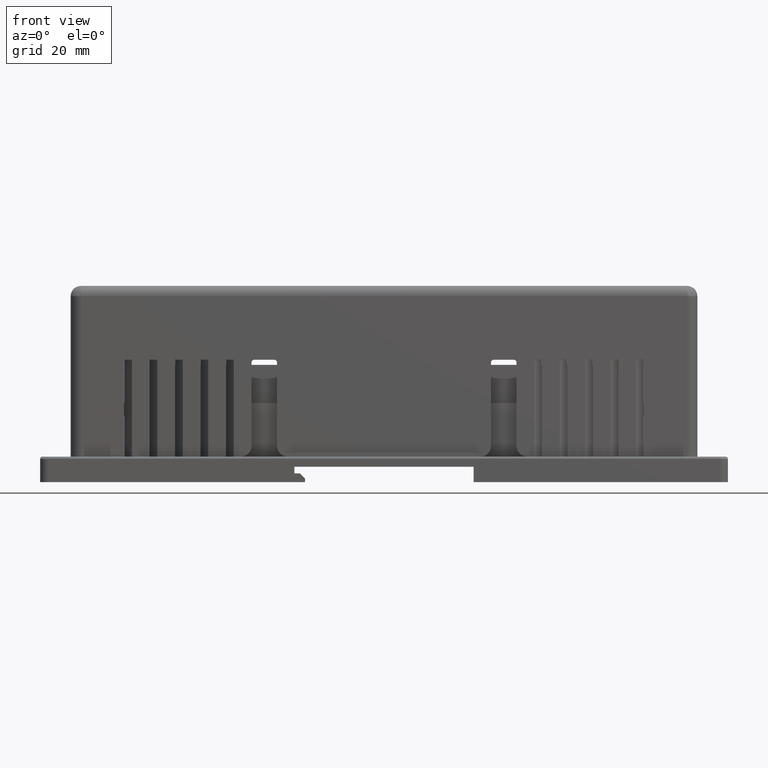
[diagram: clean part render]
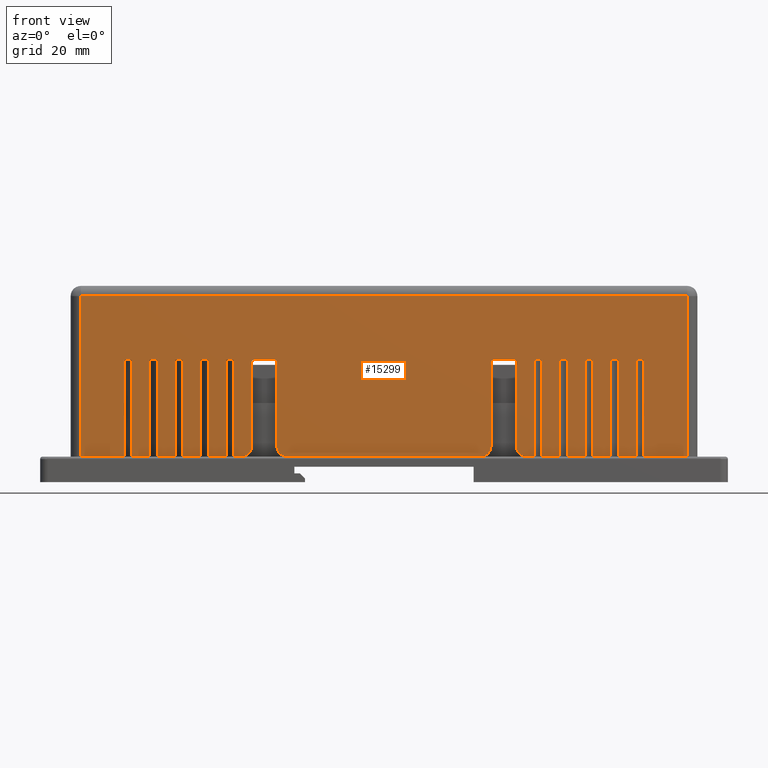
[diagram: same view with one face highlighted and labeled with its STEP entity id]
A machine part, front view. The second image highlights one B-rep face of the part: STEP entity #15299.
In plain terms, the highlighted planar face has unit normal (0, -1, 0).
Its self-contained STEP definition (entity closure, byte-faithful):
#7 = VECTOR ( 'NONE', #1507, 39.37007874015748143 ) ;
#9 = VECTOR ( 'NONE', #16006, 39.37007874015748143 ) ;
#52 = VERTEX_POINT ( 'NONE', #8788 ) ;
#218 = DIRECTION ( 'NONE',  ( -0.000000000000000000, 0.000000000000000000, 1.000000000000000000 ) ) ;
#222 = CARTESIAN_POINT ( 'NONE',  ( 1.771653543307086576, -0.1377952755905511861, -0.3937007874015748254 ) ) ;
#268 = CARTESIAN_POINT ( 'NONE',  ( 0.7677165354330708347, -0.1377952755905511861, 0.3346456692913385988 ) ) ;
#280 = EDGE_CURVE ( 'NONE', #9108, #12969, #10789, .T. ) ;
#317 = CARTESIAN_POINT ( 'NONE',  ( 1.771653543307086576, -0.1377952755905511861, -0.3937007874015748254 ) ) ;
#336 = CARTESIAN_POINT ( 'NONE',  ( -0.2559055118110236671, -0.1377952755905511861, 0.3543307086614173596 ) ) ;
#349 = VECTOR ( 'NONE', #8469, 39.37007874015748143 ) ;
#376 = AXIS2_PLACEMENT_3D ( 'NONE', #9780, #627, #16168 ) ;
#398 = DIRECTION ( 'NONE',  ( 1.000000000000000000, 0.000000000000000000, -0.000000000000000000 ) ) ;
#414 = LINE ( 'NONE', #1582, #12152 ) ;
#449 = CARTESIAN_POINT ( 'NONE',  ( 0.3539370078740162184, -0.1377952755905511861, -0.3937007874015748254 ) ) ;
#489 = VERTEX_POINT ( 'NONE', #1282 ) ;
#506 = CARTESIAN_POINT ( 'NONE',  ( 4.114173228346456490, -0.1377952755905511861, -0.3937007874015748254 ) ) ;
#540 = VERTEX_POINT ( 'NONE', #506 ) ;
#562 = ORIENTED_EDGE ( 'NONE', *, *, #9488, .T. ) ;
#627 = DIRECTION ( 'NONE',  ( -0.000000000000000000, 1.000000000000000000, -0.000000000000000000 ) ) ;
#631 = CARTESIAN_POINT ( 'NONE',  ( -0.03976377952755904416, -0.1377952755905512139, 0.3543307086614173596 ) ) ;
#801 = LINE ( 'NONE', #5932, #9454 ) ;
#866 = CARTESIAN_POINT ( 'NONE',  ( -0.1767716535433071223, -0.1377952755905511584, 0.3543307086614173596 ) ) ;
#870 = VECTOR ( 'NONE', #7712, 39.37007874015748143 ) ;
#882 = ORIENTED_EDGE ( 'NONE', *, *, #1817, .T. ) ;
#926 = CARTESIAN_POINT ( 'NONE',  ( 2.972440944881889813, -0.1377952755905511861, 0.3543307086614173596 ) ) ;
#996 = EDGE_CURVE ( 'NONE', #4552, #1030, #10722, .T. ) ;
#999 = VERTEX_POINT ( 'NONE', #1663 ) ;
#1013 = EDGE_CURVE ( 'NONE', #13964, #6480, #13153, .T. ) ;
#1025 = DIRECTION ( 'NONE',  ( 1.000000000000000000, 0.000000000000000000, 0.000000000000000000 ) ) ;
#1028 = ORIENTED_EDGE ( 'NONE', *, *, #3982, .T. ) ;
#1030 = VERTEX_POINT ( 'NONE', #6790 ) ;
#1064 = VERTEX_POINT ( 'NONE', #6620 ) ;
#1079 = CARTESIAN_POINT ( 'NONE',  ( 0.5507874015748032148, -0.1377952755905511861, -0.3937007874015748254 ) ) ;
#1239 = VERTEX_POINT ( 'NONE', #3579 ) ;
#1253 = CARTESIAN_POINT ( 'NONE',  ( 1.771653543307086576, -0.1377952755905511861, -0.3937007874015748254 ) ) ;
#1282 = CARTESIAN_POINT ( 'NONE',  ( -0.5708661417322834497, -0.1377952755905511861, -0.3937007874015748254 ) ) ;
#1296 = EDGE_CURVE ( 'NONE', #15370, #4552, #16512, .T. ) ;
#1396 = EDGE_CURVE ( 'NONE', #1030, #10910, #11976, .T. ) ;
#1496 = CARTESIAN_POINT ( 'NONE',  ( 2.795275590551181466, -0.1377952755905511861, 0.3346456692913382103 ) ) ;
#1507 = DIRECTION ( 'NONE',  ( 1.000000000000000000, 0.000000000000000000, 0.000000000000000000 ) ) ;
#1558 = ORIENTED_EDGE ( 'NONE', *, *, #6232, .T. ) ;
#1582 = CARTESIAN_POINT ( 'NONE',  ( 1.771653543307086576, -0.1377952755905511861, 0.3543307086614174151 ) ) ;
#1662 = VECTOR ( 'NONE', #15083, 39.37007874015748143 ) ;
#1663 = CARTESIAN_POINT ( 'NONE',  ( 0.6106299212598425008, -0.1377952755905511584, 0.3543307086614173596 ) ) ;
#1676 = CARTESIAN_POINT ( 'NONE',  ( 0.6692913385826771977, -0.1377952755905511584, -0.3937007874015748254 ) ) ;
#1692 = EDGE_CURVE ( 'NONE', #2857, #10312, #12879, .T. ) ;
#1710 = DIRECTION ( 'NONE',  ( 0.000000000000000000, 0.000000000000000000, -1.000000000000000000 ) ) ;
#1730 = ORIENTED_EDGE ( 'NONE', *, *, #4586, .T. ) ;
#1735 = DIRECTION ( 'NONE',  ( 0.000000000000000000, -0.000000000000000000, -1.000000000000000000 ) ) ;
#1746 = VECTOR ( 'NONE', #13770, 39.37007874015748143 ) ;
#1780 = EDGE_CURVE ( 'NONE', #7309, #8877, #6586, .T. ) ;
#1798 = CARTESIAN_POINT ( 'NONE',  ( 2.598425196850393970, -0.1377952755905511861, -0.3149606299212598381 ) ) ;
#1817 = EDGE_CURVE ( 'NONE', #15528, #12512, #9317, .T. ) ;
#1827 = DIRECTION ( 'NONE',  ( 1.000000000000000000, 0.000000000000000000, 9.691192603222390418E-18 ) ) ;
#1855 = VERTEX_POINT ( 'NONE', #10444 ) ;
#1874 = DIRECTION ( 'NONE',  ( -1.000000000000000000, -0.000000000000000000, -0.000000000000000000 ) ) ;
#1883 = PLANE ( 'NONE',  #13950 ) ;
#2083 = ORIENTED_EDGE ( 'NONE', *, *, #14438, .T. ) ;
#2092 = CARTESIAN_POINT ( 'NONE',  ( 1.023622047244094668, -0.1377952755905511584, -0.3937007874015748254 ) ) ;
#2097 = EDGE_CURVE ( 'NONE', #2661, #1239, #8675, .T. ) ;
#2291 = LINE ( 'NONE', #6157, #7027 ) ;
#2361 = ORIENTED_EDGE ( 'NONE', *, *, #2826, .T. ) ;
#2365 = DIRECTION ( 'NONE',  ( 0.000000000000000000, -0.000000000000000000, -1.000000000000000000 ) ) ;
#2444 = CARTESIAN_POINT ( 'NONE',  ( -0.03976377952755894007, -0.1377952755905511861, -0.3937007874015748254 ) ) ;
#2450 = CARTESIAN_POINT ( 'NONE',  ( -0.5708661417322834497, -0.1377952755905511861, -0.3937007874015748254 ) ) ;
#2462 = VECTOR ( 'NONE', #9922, 39.37007874015748143 ) ;
#2501 = CIRCLE ( 'NONE', #376, 0.01968503937007875723 ) ;
#2503 = CARTESIAN_POINT ( 'NONE',  ( 2.972440944881889813, -0.1377952755905511861, 0.3543307086614173596 ) ) ;
#2512 = VECTOR ( 'NONE', #7592, 39.37007874015748143 ) ;
#2513 = ORIENTED_EDGE ( 'NONE', *, *, #10136, .T. ) ;
#2527 = DIRECTION ( 'NONE',  ( -0.000000000000000000, 0.000000000000000000, 1.000000000000000000 ) ) ;
#2540 = EDGE_LOOP ( 'NONE', ( #14935, #4511, #2361, #3296, #16318, #1730, #13792, #11106, #4800, #2717, #14755, #10443, #6383, #16535, #8530, #5771, #9822, #11409, #3586, #10864, #12411, #12819, #8148, #7478, #6593, #1028, #9042, #15310, #4113, #6407, #5220, #15961, #2083, #562, #8627, #1558, #12165, #2513, #10404, #3316, #8441, #14390, #14912, #10582, #16183, #3297, #13125, #9149, #8904, #6479, #7464, #9438, #4200, #14515, #8187, #882, #14923, #10607, #10685, #9868 ) ) ;
#2592 = CARTESIAN_POINT ( 'NONE',  ( 2.992519685039370270, -0.1377952755905511861, 0.3543307086614173596 ) ) ;
#2610 = CARTESIAN_POINT ( 'NONE',  ( 3.523228346456693139, -0.1377952755905511861, -0.3937007874015748254 ) ) ;
#2637 = CARTESIAN_POINT ( 'NONE',  ( -0.2559055118110236671, -0.1377952755905511861, 0.3543307086614173596 ) ) ;
#2658 = VERTEX_POINT ( 'NONE', #631 ) ;
#2661 = VERTEX_POINT ( 'NONE', #12473 ) ;
#2705 = VECTOR ( 'NONE', #16132, 39.37007874015748143 ) ;
#2717 = ORIENTED_EDGE ( 'NONE', *, *, #4909, .T. ) ;
#2754 = VERTEX_POINT ( 'NONE', #3813 ) ;
#2790 = VECTOR ( 'NONE', #15142, 39.37007874015748143 ) ;
#2826 = EDGE_CURVE ( 'NONE', #6307, #10511, #2291, .T. ) ;
#2835 = CARTESIAN_POINT ( 'NONE',  ( 0.6692913385826771977, -0.1377952755905511861, -0.3149606299212598381 ) ) ;
#2857 = VERTEX_POINT ( 'NONE', #16576 ) ;
#2922 = CARTESIAN_POINT ( 'NONE',  ( 0.7480314960629921295, -0.1377952755905511861, -0.3149606299212598381 ) ) ;
#2931 = EDGE_CURVE ( 'NONE', #6480, #1064, #13784, .T. ) ;
#2954 = CARTESIAN_POINT ( 'NONE',  ( 0.9448818897637796255, -0.1377952755905511861, -0.3937007874015748254 ) ) ;
#2997 = LINE ( 'NONE', #5268, #10905 ) ;
#3014 = VECTOR ( 'NONE', #12463, 39.37007874015748143 ) ;
#3091 = DIRECTION ( 'NONE',  ( 0.000000000000000000, -1.000000000000000000, 0.000000000000000000 ) ) ;
#3111 = EDGE_CURVE ( 'NONE', #13335, #13522, #14982, .T. ) ;
#3287 = VECTOR ( 'NONE', #9512, 39.37007874015748143 ) ;
#3296 = ORIENTED_EDGE ( 'NONE', *, *, #9473, .T. ) ;
#3297 = ORIENTED_EDGE ( 'NONE', *, *, #12494, .T. ) ;
#3316 = ORIENTED_EDGE ( 'NONE', *, *, #996, .T. ) ;
#3336 = EDGE_CURVE ( 'NONE', #5058, #540, #6981, .T. ) ;
#3355 = VERTEX_POINT ( 'NONE', #6740 ) ;
#3405 = DIRECTION ( 'NONE',  ( -0.000000000000000000, 0.000000000000000000, 1.000000000000000000 ) ) ;
#3448 = EDGE_CURVE ( 'NONE', #12488, #4347, #8501, .T. ) ;
#3579 = CARTESIAN_POINT ( 'NONE',  ( 3.583070866141732758, -0.1377952755905511861, -0.3937007874015748810 ) ) ;
#3586 = ORIENTED_EDGE ( 'NONE', *, *, #12535, .T. ) ;
#3663 = CARTESIAN_POINT ( 'NONE',  ( 3.189370078740158210, -0.1377952755905511861, -0.3937007874015748254 ) ) ;
#3667 = CIRCLE ( 'NONE', #7165, 0.01968503937007875723 ) ;
#3771 = VECTOR ( 'NONE', #6784, 39.37007874015748143 ) ;
#3813 = CARTESIAN_POINT ( 'NONE',  ( 0.3539370078740161629, -0.1377952755905512416, 0.3543307086614173596 ) ) ;
#3837 = LINE ( 'NONE', #8720, #12247 ) ;
#3981 = CARTESIAN_POINT ( 'NONE',  ( 3.720078740157480190, -0.1377952755905511861, -0.3937007874015748254 ) ) ;
#3982 = EDGE_CURVE ( 'NONE', #540, #9108, #7944, .T. ) ;
#4040 = VERTEX_POINT ( 'NONE', #14657 ) ;
#4085 = CARTESIAN_POINT ( 'NONE',  ( 4.114173228346456490, -0.1377952755905511861, -0.3937007874015748254 ) ) ;
#4113 = ORIENTED_EDGE ( 'NONE', *, *, #13817, .T. ) ;
#4117 = VERTEX_POINT ( 'NONE', #1798 ) ;
#4175 = EDGE_CURVE ( 'NONE', #12969, #489, #6074, .T. ) ;
#4186 = CARTESIAN_POINT ( 'NONE',  ( 0.2169291338582677586, -0.1377952755905511861, -0.3937007874015748254 ) ) ;
#4195 = VERTEX_POINT ( 'NONE', #7338 ) ;
#4200 = ORIENTED_EDGE ( 'NONE', *, *, #6755, .T. ) ;
#4247 = VECTOR ( 'NONE', #11194, 39.37007874015748143 ) ;
#4256 = VERTEX_POINT ( 'NONE', #9857 ) ;
#4269 = EDGE_CURVE ( 'NONE', #11845, #10123, #16406, .T. ) ;
#4298 = DIRECTION ( 'NONE',  ( 0.000000000000000000, 0.000000000000000000, -1.000000000000000000 ) ) ;
#4347 = VERTEX_POINT ( 'NONE', #5484 ) ;
#4414 = LINE ( 'NONE', #8446, #7071 ) ;
#4424 = DIRECTION ( 'NONE',  ( -1.000000000000000000, 0.000000000000000000, -0.000000000000000000 ) ) ;
#4469 = VERTEX_POINT ( 'NONE', #10766 ) ;
#4483 = CARTESIAN_POINT ( 'NONE',  ( 2.874015748031495843, -0.1377952755905511584, -0.3149606299212598381 ) ) ;
#4511 = ORIENTED_EDGE ( 'NONE', *, *, #9804, .T. ) ;
#4552 = VERTEX_POINT ( 'NONE', #12447 ) ;
#4564 = AXIS2_PLACEMENT_3D ( 'NONE', #2835, #3091, #13334 ) ;
#4586 = EDGE_CURVE ( 'NONE', #13387, #8107, #10079, .T. ) ;
#4600 = VECTOR ( 'NONE', #4676, 39.37007874015748143 ) ;
#4668 = FACE_OUTER_BOUND ( 'NONE', #2540, .T. ) ;
#4676 = DIRECTION ( 'NONE',  ( -0.000000000000000000, 0.000000000000000000, 1.000000000000000000 ) ) ;
#4738 = CARTESIAN_POINT ( 'NONE',  ( 0.6106299212598425008, -0.1377952755905511861, -0.3937007874015748254 ) ) ;
#4800 = ORIENTED_EDGE ( 'NONE', *, *, #5314, .T. ) ;
#4909 = EDGE_CURVE ( 'NONE', #4040, #6538, #15184, .T. ) ;
#4927 = DIRECTION ( 'NONE',  ( 0.000000000000000000, -0.000000000000000000, -1.000000000000000000 ) ) ;
#4939 = DIRECTION ( 'NONE',  ( -0.000000000000000000, 0.000000000000000000, 1.000000000000000000 ) ) ;
#4999 = VERTEX_POINT ( 'NONE', #12582 ) ;
#5051 = DIRECTION ( 'NONE',  ( 0.000000000000000000, 0.000000000000000000, -1.000000000000000000 ) ) ;
#5058 = VERTEX_POINT ( 'NONE', #5280 ) ;
#5084 = LINE ( 'NONE', #6350, #7619 ) ;
#5159 = CARTESIAN_POINT ( 'NONE',  ( 2.992519685039370270, -0.1377952755905511861, -0.3937007874015748254 ) ) ;
#5169 = VECTOR ( 'NONE', #15411, 39.37007874015748143 ) ;
#5179 = DIRECTION ( 'NONE',  ( 1.000000000000000000, 0.000000000000000000, 9.691192603222390418E-18 ) ) ;
#5220 = ORIENTED_EDGE ( 'NONE', *, *, #16488, .T. ) ;
#5268 = CARTESIAN_POINT ( 'NONE',  ( 1.771653543307086576, -0.1377952755905511861, -0.3937007874015748254 ) ) ;
#5270 = CARTESIAN_POINT ( 'NONE',  ( 3.720078740157480190, -0.1377952755905511584, 0.3543307086614173596 ) ) ;
#5277 = EDGE_CURVE ( 'NONE', #15658, #7986, #2501, .T. ) ;
#5280 = CARTESIAN_POINT ( 'NONE',  ( 3.779921259842519810, -0.1377952755905511584, -0.3937007874015748254 ) ) ;
#5314 = EDGE_CURVE ( 'NONE', #4256, #4040, #4414, .T. ) ;
#5425 = EDGE_CURVE ( 'NONE', #999, #14865, #13966, .T. ) ;
#5443 = CARTESIAN_POINT ( 'NONE',  ( 0.02007874015748049509, -0.1377952755905511584, -0.3937007874015748254 ) ) ;
#5484 = CARTESIAN_POINT ( 'NONE',  ( 3.523228346456693139, -0.1377952755905511584, -0.3937007874015748810 ) ) ;
#5532 = DIRECTION ( 'NONE',  ( 1.000000000000000000, 0.000000000000000000, 0.000000000000000000 ) ) ;
#5560 = DIRECTION ( 'NONE',  ( 0.000000000000000000, -0.000000000000000000, -1.000000000000000000 ) ) ;
#5572 = DIRECTION ( 'NONE',  ( -0.000000000000000000, 0.000000000000000000, 1.000000000000000000 ) ) ;
#5601 = DIRECTION ( 'NONE',  ( 1.000000000000000000, 0.000000000000000000, 0.000000000000000000 ) ) ;
#5680 = LINE ( 'NONE', #15604, #3771 ) ;
#5740 = CARTESIAN_POINT ( 'NONE',  ( 2.618110236220472675, -0.1377952755905511861, 0.3543307086614173596 ) ) ;
#5771 = ORIENTED_EDGE ( 'NONE', *, *, #12549, .T. ) ;
#5817 = CARTESIAN_POINT ( 'NONE',  ( 2.598425196850393970, -0.1377952755905511861, 0.3346456692913382103 ) ) ;
#5880 = LINE ( 'NONE', #13852, #13713 ) ;
#5932 = CARTESIAN_POINT ( 'NONE',  ( -0.2366141732283465193, -0.1377952755905511861, -0.3937007874015748254 ) ) ;
#5987 = VERTEX_POINT ( 'NONE', #11853 ) ;
#5992 = CARTESIAN_POINT ( 'NONE',  ( 1.771653543307086576, -0.1377952755905511861, -0.3937007874015748254 ) ) ;
#6005 = VECTOR ( 'NONE', #2365, 39.37007874015748143 ) ;
#6074 = LINE ( 'NONE', #2450, #2512 ) ;
#6157 = CARTESIAN_POINT ( 'NONE',  ( 2.795275590551181466, -0.1377952755905511861, -0.3937007874015748254 ) ) ;
#6167 = CARTESIAN_POINT ( 'NONE',  ( 3.326377952755905643, -0.1377952755905511861, -0.3937007874015748254 ) ) ;
#6180 = DIRECTION ( 'NONE',  ( 0.000000000000000000, -0.000000000000000000, -1.000000000000000000 ) ) ;
#6189 = CARTESIAN_POINT ( 'NONE',  ( 1.771653543307086576, -0.1377952755905511861, -0.3937007874015748254 ) ) ;
#6199 = CARTESIAN_POINT ( 'NONE',  ( 0.02007874015748045346, -0.1377952755905511861, -0.3937007874015748254 ) ) ;
#6210 = DIRECTION ( 'NONE',  ( 1.000000000000000000, 0.000000000000000000, -0.000000000000000000 ) ) ;
#6232 = EDGE_CURVE ( 'NONE', #4999, #14350, #11240, .T. ) ;
#6272 = LINE ( 'NONE', #3663, #12784 ) ;
#6307 = VERTEX_POINT ( 'NONE', #1496 ) ;
#6309 = CARTESIAN_POINT ( 'NONE',  ( 3.583070866141732758, -0.1377952755905511861, -0.3937007874015748254 ) ) ;
#6315 = LINE ( 'NONE', #5992, #8049 ) ;
#6350 = CARTESIAN_POINT ( 'NONE',  ( 1.771653543307086576, -0.1377952755905511861, 0.3543307086614174151 ) ) ;
#6383 = ORIENTED_EDGE ( 'NONE', *, *, #13382, .T. ) ;
#6407 = ORIENTED_EDGE ( 'NONE', *, *, #10261, .T. ) ;
#6430 = CARTESIAN_POINT ( 'NONE',  ( -0.2559055118110236671, -0.1377952755905511861, 0.3543307086614173596 ) ) ;
#6479 = ORIENTED_EDGE ( 'NONE', *, *, #1013, .T. ) ;
#6480 = VERTEX_POINT ( 'NONE', #2922 ) ;
#6485 = AXIS2_PLACEMENT_3D ( 'NONE', #7125, #8726, #4298 ) ;
#6518 = LINE ( 'NONE', #6167, #1662 ) ;
#6538 = VERTEX_POINT ( 'NONE', #16266 ) ;
#6586 = LINE ( 'NONE', #3981, #12782 ) ;
#6593 = ORIENTED_EDGE ( 'NONE', *, *, #3336, .T. ) ;
#6620 = CARTESIAN_POINT ( 'NONE',  ( 0.7480314960629921295, -0.1377952755905511861, 0.3346456692913385988 ) ) ;
#6674 = AXIS2_PLACEMENT_3D ( 'NONE', #4483, #14732, #13470 ) ;
#6740 = CARTESIAN_POINT ( 'NONE',  ( 2.519685039370078705, -0.1377952755905511861, -0.3937007874015748254 ) ) ;
#6746 = CIRCLE ( 'NONE', #6485, 0.01968503937007875723 ) ;
#6755 = EDGE_CURVE ( 'NONE', #7336, #15658, #5084, .T. ) ;
#6784 = DIRECTION ( 'NONE',  ( 1.000000000000000000, 0.000000000000000000, 0.000000000000000000 ) ) ;
#6790 = CARTESIAN_POINT ( 'NONE',  ( 0.2169291338582677586, -0.1377952755905511861, -0.3937007874015748254 ) ) ;
#6834 = VECTOR ( 'NONE', #4939, 39.37007874015748143 ) ;
#6841 = VERTEX_POINT ( 'NONE', #11859 ) ;
#6859 = DIRECTION ( 'NONE',  ( 1.000000000000000000, 0.000000000000000000, 0.000000000000000000 ) ) ;
#6906 = VERTEX_POINT ( 'NONE', #7918 ) ;
#6980 = LINE ( 'NONE', #2954, #11032 ) ;
#6981 = LINE ( 'NONE', #15807, #3287 ) ;
#7027 = VECTOR ( 'NONE', #12803, 39.37007874015748143 ) ;
#7071 = VECTOR ( 'NONE', #14908, 39.37007874015748143 ) ;
#7102 = CARTESIAN_POINT ( 'NONE',  ( 1.771653543307086576, -0.1377952755905511584, -0.3937007874015748254 ) ) ;
#7125 = CARTESIAN_POINT ( 'NONE',  ( 2.775590551181102761, -0.1377952755905511861, 0.3346456692913382103 ) ) ;
#7142 = EDGE_CURVE ( 'NONE', #8107, #13854, #12677, .T. ) ;
#7149 = CARTESIAN_POINT ( 'NONE',  ( 0.1570866141732284449, -0.1377952755905512139, -0.3937007874015748254 ) ) ;
#7165 = AXIS2_PLACEMENT_3D ( 'NONE', #12352, #14959, #8663 ) ;
#7219 = DIRECTION ( 'NONE',  ( 1.000000000000000000, 0.000000000000000000, 0.000000000000000000 ) ) ;
#7309 = VERTEX_POINT ( 'NONE', #7977 ) ;
#7313 = VECTOR ( 'NONE', #5572, 39.37007874015748143 ) ;
#7336 = VERTEX_POINT ( 'NONE', #14440 ) ;
#7338 = CARTESIAN_POINT ( 'NONE',  ( 2.775590551181102761, -0.1377952755905511861, 0.3543307086614173596 ) ) ;
#7360 = CARTESIAN_POINT ( 'NONE',  ( 3.386220472440945262, -0.1377952755905511861, 0.3543307086614173596 ) ) ;
#7385 = CARTESIAN_POINT ( 'NONE',  ( 3.129527559055117703, -0.1377952755905511861, -0.3937007874015748254 ) ) ;
#7409 = CARTESIAN_POINT ( 'NONE',  ( 2.932677165354330651, -0.1377952755905511584, -0.3937007874015748254 ) ) ;
#7430 = EDGE_CURVE ( 'NONE', #2658, #4999, #15945, .T. ) ;
#7435 = CIRCLE ( 'NONE', #7707, 0.07874015748031495954 ) ;
#7464 = ORIENTED_EDGE ( 'NONE', *, *, #2931, .T. ) ;
#7468 = EDGE_CURVE ( 'NONE', #8717, #5058, #3837, .T. ) ;
#7469 = EDGE_CURVE ( 'NONE', #13353, #1855, #6272, .T. ) ;
#7478 = ORIENTED_EDGE ( 'NONE', *, *, #7468, .T. ) ;
#7531 = CARTESIAN_POINT ( 'NONE',  ( 3.326377952755905643, -0.1377952755905511584, -0.3937007874015748810 ) ) ;
#7562 = DIRECTION ( 'NONE',  ( 0.000000000000000000, 0.000000000000000000, -1.000000000000000000 ) ) ;
#7592 = DIRECTION ( 'NONE',  ( 0.000000000000000000, -0.000000000000000000, -1.000000000000000000 ) ) ;
#7619 = VECTOR ( 'NONE', #15340, 39.37007874015748143 ) ;
#7627 = EDGE_CURVE ( 'NONE', #8877, #8717, #15600, .T. ) ;
#7707 = AXIS2_PLACEMENT_3D ( 'NONE', #16463, #15458, #7562 ) ;
#7712 = DIRECTION ( 'NONE',  ( 1.000000000000000000, 0.000000000000000000, 0.000000000000000000 ) ) ;
#7740 = EDGE_CURVE ( 'NONE', #1239, #7309, #2997, .T. ) ;
#7790 = CARTESIAN_POINT ( 'NONE',  ( 3.779921259842519810, -0.1377952755905511861, 0.3543307086614173596 ) ) ;
#7817 = VECTOR ( 'NONE', #12516, 39.37007874015748143 ) ;
#7918 = CARTESIAN_POINT ( 'NONE',  ( 2.874015748031495843, -0.1377952755905511584, -0.3937007874015748254 ) ) ;
#7944 = LINE ( 'NONE', #4085, #14798 ) ;
#7959 = VECTOR ( 'NONE', #15150, 39.37007874015748143 ) ;
#7977 = CARTESIAN_POINT ( 'NONE',  ( 3.720078740157480190, -0.1377952755905511584, -0.3937007874015748810 ) ) ;
#7986 = VERTEX_POINT ( 'NONE', #10350 ) ;
#8000 = VECTOR ( 'NONE', #14585, 39.37007874015748143 ) ;
#8006 = EDGE_CURVE ( 'NONE', #4347, #15491, #13735, .T. ) ;
#8037 = CARTESIAN_POINT ( 'NONE',  ( 2.972440944881889813, -0.1377952755905511861, 0.3543307086614173596 ) ) ;
#8049 = VECTOR ( 'NONE', #1025, 39.37007874015748143 ) ;
#8088 = VECTOR ( 'NONE', #4424, 39.37007874015748143 ) ;
#8107 = VERTEX_POINT ( 'NONE', #8328 ) ;
#8131 = DIRECTION ( 'NONE',  ( 1.000000000000000000, 0.000000000000000000, 0.000000000000000000 ) ) ;
#8148 = ORIENTED_EDGE ( 'NONE', *, *, #7627, .T. ) ;
#8187 = ORIENTED_EDGE ( 'NONE', *, *, #13618, .T. ) ;
#8258 = EDGE_CURVE ( 'NONE', #10874, #14533, #3667, .T. ) ;
#8304 = LINE ( 'NONE', #10728, #349 ) ;
#8328 = CARTESIAN_POINT ( 'NONE',  ( 2.932677165354330651, -0.1377952755905511861, 0.3543307086614173596 ) ) ;
#8330 = EDGE_CURVE ( 'NONE', #3355, #4117, #7435, .T. ) ;
#8359 = CARTESIAN_POINT ( 'NONE',  ( 1.771653543307086576, -0.1377952755905511861, 0.8464566929133857665 ) ) ;
#8441 = ORIENTED_EDGE ( 'NONE', *, *, #1396, .T. ) ;
#8446 = CARTESIAN_POINT ( 'NONE',  ( 1.771653543307086576, -0.1377952755905511861, -0.3937007874015748254 ) ) ;
#8452 = LINE ( 'NONE', #9466, #13152 ) ;
#8469 = DIRECTION ( 'NONE',  ( 1.000000000000000000, 0.000000000000000000, -0.000000000000000000 ) ) ;
#8501 = LINE ( 'NONE', #6189, #870 ) ;
#8516 = CARTESIAN_POINT ( 'NONE',  ( 3.189370078740158210, -0.1377952755905511861, 0.3543307086614173596 ) ) ;
#8530 = ORIENTED_EDGE ( 'NONE', *, *, #4269, .T. ) ;
#8627 = ORIENTED_EDGE ( 'NONE', *, *, #7430, .T. ) ;
#8663 = DIRECTION ( 'NONE',  ( 0.000000000000000000, 0.000000000000000000, -1.000000000000000000 ) ) ;
#8675 = LINE ( 'NONE', #6309, #10904 ) ;
#8705 = CARTESIAN_POINT ( 'NONE',  ( 0.4137795275590550603, -0.1377952755905511861, -0.3937007874015748254 ) ) ;
#8717 = VERTEX_POINT ( 'NONE', #7790 ) ;
#8720 = CARTESIAN_POINT ( 'NONE',  ( 3.779921259842520254, -0.1377952755905511861, -0.3937007874015748254 ) ) ;
#8726 = DIRECTION ( 'NONE',  ( -0.000000000000000000, 1.000000000000000000, -0.000000000000000000 ) ) ;
#8747 = VECTOR ( 'NONE', #14105, 39.37007874015748143 ) ;
#8771 = VECTOR ( 'NONE', #398, 39.37007874015748143 ) ;
#8788 = CARTESIAN_POINT ( 'NONE',  ( -0.03976377952755904416, -0.1377952755905512139, -0.3937007874015748254 ) ) ;
#8877 = VERTEX_POINT ( 'NONE', #5270 ) ;
#8904 = ORIENTED_EDGE ( 'NONE', *, *, #15220, .F. ) ;
#9042 = ORIENTED_EDGE ( 'NONE', *, *, #280, .T. ) ;
#9108 = VERTEX_POINT ( 'NONE', #16583 ) ;
#9114 = CARTESIAN_POINT ( 'NONE',  ( 3.523228346456693139, -0.1377952755905511861, 0.3543307086614173596 ) ) ;
#9149 = ORIENTED_EDGE ( 'NONE', *, *, #5425, .T. ) ;
#9152 = VECTOR ( 'NONE', #1874, 39.37007874015748143 ) ;
#9279 = LINE ( 'NONE', #449, #7313 ) ;
#9317 = CIRCLE ( 'NONE', #16272, 0.07874015748031495954 ) ;
#9389 = DIRECTION ( 'NONE',  ( 0.000000000000000000, -0.000000000000000000, -1.000000000000000000 ) ) ;
#9438 = ORIENTED_EDGE ( 'NONE', *, *, #15893, .T. ) ;
#9454 = VECTOR ( 'NONE', #3405, 39.37007874015748143 ) ;
#9466 = CARTESIAN_POINT ( 'NONE',  ( 1.771653543307086576, -0.1377952755905511861, -0.3937007874015748254 ) ) ;
#9473 = EDGE_CURVE ( 'NONE', #10511, #6906, #15522, .T. ) ;
#9488 = EDGE_CURVE ( 'NONE', #52, #2658, #13714, .T. ) ;
#9512 = DIRECTION ( 'NONE',  ( 1.000000000000000000, 0.000000000000000000, 0.000000000000000000 ) ) ;
#9601 = CARTESIAN_POINT ( 'NONE',  ( 0.3539370078740161629, -0.1377952755905512416, -0.3937007874015748254 ) ) ;
#9629 = CARTESIAN_POINT ( 'NONE',  ( 0.1570866141732283616, -0.1377952755905511861, -0.3937007874015748254 ) ) ;
#9780 = CARTESIAN_POINT ( 'NONE',  ( 0.9251968503937008093, -0.1377952755905511861, 0.3346456692913385988 ) ) ;
#9804 = EDGE_CURVE ( 'NONE', #4195, #6307, #6746, .T. ) ;
#9822 = ORIENTED_EDGE ( 'NONE', *, *, #3448, .T. ) ;
#9857 = CARTESIAN_POINT ( 'NONE',  ( 2.992519685039370270, -0.1377952755905511861, -0.3937007874015748810 ) ) ;
#9868 = ORIENTED_EDGE ( 'NONE', *, *, #8258, .T. ) ;
#9876 = VERTEX_POINT ( 'NONE', #13670 ) ;
#9922 = DIRECTION ( 'NONE',  ( -0.000000000000000000, 0.000000000000000000, 1.000000000000000000 ) ) ;
#10018 = CARTESIAN_POINT ( 'NONE',  ( 2.972440944881889813, -0.1377952755905511861, 0.3543307086614173596 ) ) ;
#10039 = VECTOR ( 'NONE', #11012, 39.37007874015748143 ) ;
#10079 = LINE ( 'NONE', #16304, #10039 ) ;
#10123 = VERTEX_POINT ( 'NONE', #7360 ) ;
#10136 = EDGE_CURVE ( 'NONE', #13576, #15370, #11214, .T. ) ;
#10156 = CARTESIAN_POINT ( 'NONE',  ( -0.2559055118110236671, -0.1377952755905511861, 0.3543307086614173596 ) ) ;
#10159 = LINE ( 'NONE', #1253, #7 ) ;
#10192 = CARTESIAN_POINT ( 'NONE',  ( -0.5708661417322834497, -0.1377952755905511861, 0.8464566929133857665 ) ) ;
#10261 = EDGE_CURVE ( 'NONE', #6841, #4469, #801, .T. ) ;
#10312 = VERTEX_POINT ( 'NONE', #8705 ) ;
#10337 = EDGE_CURVE ( 'NONE', #5987, #999, #14159, .T. ) ;
#10350 = CARTESIAN_POINT ( 'NONE',  ( 0.9448818897637796255, -0.1377952755905511861, 0.3346456692913385988 ) ) ;
#10351 = EDGE_CURVE ( 'NONE', #11420, #11845, #6518, .T. ) ;
#10404 = ORIENTED_EDGE ( 'NONE', *, *, #1296, .T. ) ;
#10443 = ORIENTED_EDGE ( 'NONE', *, *, #7469, .T. ) ;
#10444 = CARTESIAN_POINT ( 'NONE',  ( 3.189370078740158210, -0.1377952755905511861, -0.3937007874015748810 ) ) ;
#10511 = VERTEX_POINT ( 'NONE', #12776 ) ;
#10576 = DIRECTION ( 'NONE',  ( 1.000000000000000000, 0.000000000000000000, 9.691192603222390418E-18 ) ) ;
#10582 = ORIENTED_EDGE ( 'NONE', *, *, #1692, .T. ) ;
#10607 = ORIENTED_EDGE ( 'NONE', *, *, #8330, .T. ) ;
#10653 = EDGE_CURVE ( 'NONE', #13854, #4256, #13970, .T. ) ;
#10685 = ORIENTED_EDGE ( 'NONE', *, *, #12138, .T. ) ;
#10722 = LINE ( 'NONE', #4186, #15020 ) ;
#10728 = CARTESIAN_POINT ( 'NONE',  ( 2.972440944881889813, -0.1377952755905511861, 0.3543307086614173596 ) ) ;
#10749 = CIRCLE ( 'NONE', #11550, 0.01968503937007875723 ) ;
#10766 = CARTESIAN_POINT ( 'NONE',  ( -0.2366141732283464916, -0.1377952755905512139, 0.3543307086614173596 ) ) ;
#10789 = LINE ( 'NONE', #8359, #9152 ) ;
#10798 = DIRECTION ( 'NONE',  ( 0.000000000000000000, -1.000000000000000000, 0.000000000000000000 ) ) ;
#10810 = EDGE_CURVE ( 'NONE', #10910, #2754, #9279, .T. ) ;
#10864 = ORIENTED_EDGE ( 'NONE', *, *, #2097, .T. ) ;
#10874 = VERTEX_POINT ( 'NONE', #5817 ) ;
#10879 = LINE ( 'NONE', #7102, #9 ) ;
#10882 = LINE ( 'NONE', #14748, #8088 ) ;
#10904 = VECTOR ( 'NONE', #12452, 39.37007874015748143 ) ;
#10905 = VECTOR ( 'NONE', #8131, 39.37007874015748143 ) ;
#10910 = VERTEX_POINT ( 'NONE', #9601 ) ;
#11012 = DIRECTION ( 'NONE',  ( -0.000000000000000000, 0.000000000000000000, 1.000000000000000000 ) ) ;
#11032 = VECTOR ( 'NONE', #5560, 39.37007874015748143 ) ;
#11106 = ORIENTED_EDGE ( 'NONE', *, *, #10653, .T. ) ;
#11129 = CARTESIAN_POINT ( 'NONE',  ( 0.1570866141732286392, -0.1377952755905512139, 0.3543307086614173596 ) ) ;
#11149 = EDGE_CURVE ( 'NONE', #14533, #4195, #414, .T. ) ;
#11187 = EDGE_CURVE ( 'NONE', #6538, #13353, #8304, .T. ) ;
#11194 = DIRECTION ( 'NONE',  ( -0.000000000000000000, 0.000000000000000000, 1.000000000000000000 ) ) ;
#11214 = LINE ( 'NONE', #9629, #4600 ) ;
#11240 = LINE ( 'NONE', #6199, #1746 ) ;
#11409 = ORIENTED_EDGE ( 'NONE', *, *, #8006, .T. ) ;
#11420 = VERTEX_POINT ( 'NONE', #7531 ) ;
#11550 = AXIS2_PLACEMENT_3D ( 'NONE', #268, #14127, #5051 ) ;
#11840 = LINE ( 'NONE', #336, #15605 ) ;
#11845 = VERTEX_POINT ( 'NONE', #15075 ) ;
#11853 = CARTESIAN_POINT ( 'NONE',  ( 0.5507874015748032148, -0.1377952755905512139, 0.3543307086614173596 ) ) ;
#11857 = CARTESIAN_POINT ( 'NONE',  ( 0.6106299212598425008, -0.1377952755905511306, -0.3937007874015748810 ) ) ;
#11859 = CARTESIAN_POINT ( 'NONE',  ( -0.2366141732283465193, -0.1377952755905511861, -0.3937007874015748254 ) ) ;
#11976 = LINE ( 'NONE', #222, #8000 ) ;
#12138 = EDGE_CURVE ( 'NONE', #4117, #10874, #12294, .T. ) ;
#12152 = VECTOR ( 'NONE', #5532, 39.37007874015748143 ) ;
#12165 = ORIENTED_EDGE ( 'NONE', *, *, #15203, .T. ) ;
#12247 = VECTOR ( 'NONE', #4927, 39.37007874015748143 ) ;
#12294 = LINE ( 'NONE', #13796, #2462 ) ;
#12352 = CARTESIAN_POINT ( 'NONE',  ( 2.618110236220472675, -0.1377952755905511861, 0.3346456692913382103 ) ) ;
#12357 = DIRECTION ( 'NONE',  ( -0.000000000000000000, 0.000000000000000000, 1.000000000000000000 ) ) ;
#12402 = VECTOR ( 'NONE', #12891, 39.37007874015748143 ) ;
#12411 = ORIENTED_EDGE ( 'NONE', *, *, #7740, .T. ) ;
#12447 = CARTESIAN_POINT ( 'NONE',  ( 0.2169291338582677586, -0.1377952755905512139, 0.3543307086614173596 ) ) ;
#12452 = DIRECTION ( 'NONE',  ( 0.000000000000000000, -0.000000000000000000, -1.000000000000000000 ) ) ;
#12463 = DIRECTION ( 'NONE',  ( 0.000000000000000000, -0.000000000000000000, -1.000000000000000000 ) ) ;
#12473 = CARTESIAN_POINT ( 'NONE',  ( 3.583070866141732758, -0.1377952755905511861, 0.3543307086614173596 ) ) ;
#12488 = VERTEX_POINT ( 'NONE', #13530 ) ;
#12494 = EDGE_CURVE ( 'NONE', #9876, #5987, #14957, .T. ) ;
#12512 = VERTEX_POINT ( 'NONE', #2092 ) ;
#12516 = DIRECTION ( 'NONE',  ( -0.000000000000000000, 0.000000000000000000, 1.000000000000000000 ) ) ;
#12535 = EDGE_CURVE ( 'NONE', #15491, #2661, #16368, .T. ) ;
#12541 = VECTOR ( 'NONE', #5179, 39.37007874015748143 ) ;
#12549 = EDGE_CURVE ( 'NONE', #10123, #12488, #14792, .T. ) ;
#12582 = CARTESIAN_POINT ( 'NONE',  ( 0.02007874015748048815, -0.1377952755905512139, 0.3543307086614173596 ) ) ;
#12677 = LINE ( 'NONE', #2503, #8747 ) ;
#12715 = EDGE_CURVE ( 'NONE', #2754, #2857, #12846, .T. ) ;
#12776 = CARTESIAN_POINT ( 'NONE',  ( 2.795275590551181466, -0.1377952755905511584, -0.3149606299212598381 ) ) ;
#12779 = EDGE_CURVE ( 'NONE', #13387, #6906, #10882, .T. ) ;
#12782 = VECTOR ( 'NONE', #14476, 39.37007874015748143 ) ;
#12784 = VECTOR ( 'NONE', #6180, 39.37007874015748143 ) ;
#12803 = DIRECTION ( 'NONE',  ( 0.000000000000000000, -0.000000000000000000, -1.000000000000000000 ) ) ;
#12819 = ORIENTED_EDGE ( 'NONE', *, *, #1780, .T. ) ;
#12846 = LINE ( 'NONE', #10156, #13170 ) ;
#12879 = LINE ( 'NONE', #14061, #7959 ) ;
#12891 = DIRECTION ( 'NONE',  ( 1.000000000000000000, 0.000000000000000000, 9.691192603222390418E-18 ) ) ;
#12911 = VECTOR ( 'NONE', #6210, 39.37007874015748143 ) ;
#12943 = VECTOR ( 'NONE', #12357, 39.37007874015748143 ) ;
#12969 = VERTEX_POINT ( 'NONE', #10192 ) ;
#13077 = LINE ( 'NONE', #317, #13699 ) ;
#13125 = ORIENTED_EDGE ( 'NONE', *, *, #10337, .T. ) ;
#13134 = CARTESIAN_POINT ( 'NONE',  ( 0.9448818897637796255, -0.1377952755905511584, -0.3149606299212598381 ) ) ;
#13152 = VECTOR ( 'NONE', #6859, 39.37007874015748143 ) ;
#13153 = CIRCLE ( 'NONE', #4564, 0.07874015748031495954 ) ;
#13170 = VECTOR ( 'NONE', #14192, 39.37007874015748143 ) ;
#13221 = CARTESIAN_POINT ( 'NONE',  ( 1.023622047244094668, -0.1377952755905511584, -0.3149606299212598381 ) ) ;
#13334 = DIRECTION ( 'NONE',  ( 0.000000000000000000, 0.000000000000000000, -1.000000000000000000 ) ) ;
#13335 = VERTEX_POINT ( 'NONE', #866 ) ;
#13341 = CARTESIAN_POINT ( 'NONE',  ( -0.2559055118110236671, -0.1377952755905511861, 0.3543307086614173596 ) ) ;
#13353 = VERTEX_POINT ( 'NONE', #8516 ) ;
#13382 = EDGE_CURVE ( 'NONE', #1855, #11420, #6315, .T. ) ;
#13387 = VERTEX_POINT ( 'NONE', #7409 ) ;
#13470 = DIRECTION ( 'NONE',  ( 0.000000000000000000, 0.000000000000000000, -1.000000000000000000 ) ) ;
#13522 = VERTEX_POINT ( 'NONE', #14714 ) ;
#13530 = CARTESIAN_POINT ( 'NONE',  ( 3.386220472440945262, -0.1377952755905511861, -0.3937007874015748810 ) ) ;
#13576 = VERTEX_POINT ( 'NONE', #7149 ) ;
#13609 = CARTESIAN_POINT ( 'NONE',  ( 3.386220472440945262, -0.1377952755905511861, -0.3937007874015748254 ) ) ;
#13618 = EDGE_CURVE ( 'NONE', #7986, #15528, #6980, .T. ) ;
#13670 = CARTESIAN_POINT ( 'NONE',  ( 0.5507874015748032148, -0.1377952755905512139, -0.3937007874015748254 ) ) ;
#13699 = VECTOR ( 'NONE', #5601, 39.37007874015748143 ) ;
#13713 = VECTOR ( 'NONE', #7219, 39.37007874015748143 ) ;
#13714 = LINE ( 'NONE', #2444, #4247 ) ;
#13735 = LINE ( 'NONE', #2610, #13871 ) ;
#13770 = DIRECTION ( 'NONE',  ( 0.000000000000000000, -0.000000000000000000, -1.000000000000000000 ) ) ;
#13784 = LINE ( 'NONE', #16378, #12943 ) ;
#13792 = ORIENTED_EDGE ( 'NONE', *, *, #7142, .T. ) ;
#13796 = CARTESIAN_POINT ( 'NONE',  ( 2.598425196850393970, -0.1377952755905511861, -0.3937007874015748254 ) ) ;
#13817 = EDGE_CURVE ( 'NONE', #489, #6841, #10159, .T. ) ;
#13852 = CARTESIAN_POINT ( 'NONE',  ( 1.771653543307086576, -0.1377952755905511861, -0.3937007874015748254 ) ) ;
#13854 = VERTEX_POINT ( 'NONE', #2592 ) ;
#13871 = VECTOR ( 'NONE', #2527, 39.37007874015748143 ) ;
#13950 = AXIS2_PLACEMENT_3D ( 'NONE', #15835, #10798, #1735 ) ;
#13964 = VERTEX_POINT ( 'NONE', #1676 ) ;
#13966 = LINE ( 'NONE', #4738, #6005 ) ;
#13970 = LINE ( 'NONE', #5159, #5169 ) ;
#14061 = CARTESIAN_POINT ( 'NONE',  ( 0.4137795275590550603, -0.1377952755905511861, -0.3937007874015748254 ) ) ;
#14105 = DIRECTION ( 'NONE',  ( 1.000000000000000000, 0.000000000000000000, -0.000000000000000000 ) ) ;
#14127 = DIRECTION ( 'NONE',  ( -0.000000000000000000, 1.000000000000000000, -0.000000000000000000 ) ) ;
#14159 = LINE ( 'NONE', #2637, #12402 ) ;
#14192 = DIRECTION ( 'NONE',  ( 1.000000000000000000, 0.000000000000000000, 9.691192603222390418E-18 ) ) ;
#14225 = DIRECTION ( 'NONE',  ( 0.000000000000000000, -1.000000000000000000, 0.000000000000000000 ) ) ;
#14344 = EDGE_CURVE ( 'NONE', #10312, #9876, #13077, .T. ) ;
#14350 = VERTEX_POINT ( 'NONE', #5443 ) ;
#14390 = ORIENTED_EDGE ( 'NONE', *, *, #10810, .T. ) ;
#14438 = EDGE_CURVE ( 'NONE', #13522, #52, #5680, .T. ) ;
#14440 = CARTESIAN_POINT ( 'NONE',  ( 0.7677165354330708347, -0.1377952755905511861, 0.3543307086614173596 ) ) ;
#14476 = DIRECTION ( 'NONE',  ( -0.000000000000000000, 0.000000000000000000, 1.000000000000000000 ) ) ;
#14515 = ORIENTED_EDGE ( 'NONE', *, *, #5277, .T. ) ;
#14533 = VERTEX_POINT ( 'NONE', #5740 ) ;
#14585 = DIRECTION ( 'NONE',  ( 1.000000000000000000, 0.000000000000000000, 0.000000000000000000 ) ) ;
#14657 = CARTESIAN_POINT ( 'NONE',  ( 3.129527559055117703, -0.1377952755905511584, -0.3937007874015748810 ) ) ;
#14714 = CARTESIAN_POINT ( 'NONE',  ( -0.1767716535433071223, -0.1377952755905511861, -0.3937007874015748254 ) ) ;
#14732 = DIRECTION ( 'NONE',  ( 0.000000000000000000, -1.000000000000000000, 0.000000000000000000 ) ) ;
#14748 = CARTESIAN_POINT ( 'NONE',  ( 1.771653543307086576, -0.1377952755905511584, -0.3937007874015748254 ) ) ;
#14755 = ORIENTED_EDGE ( 'NONE', *, *, #11187, .T. ) ;
#14792 = LINE ( 'NONE', #13609, #2705 ) ;
#14798 = VECTOR ( 'NONE', #218, 39.37007874015748143 ) ;
#14865 = VERTEX_POINT ( 'NONE', #11857 ) ;
#14908 = DIRECTION ( 'NONE',  ( 1.000000000000000000, 0.000000000000000000, 0.000000000000000000 ) ) ;
#14912 = ORIENTED_EDGE ( 'NONE', *, *, #12715, .T. ) ;
#14923 = ORIENTED_EDGE ( 'NONE', *, *, #15016, .T. ) ;
#14935 = ORIENTED_EDGE ( 'NONE', *, *, #11149, .T. ) ;
#14957 = LINE ( 'NONE', #1079, #7817 ) ;
#14959 = DIRECTION ( 'NONE',  ( -0.000000000000000000, 1.000000000000000000, -0.000000000000000000 ) ) ;
#14982 = LINE ( 'NONE', #16402, #3014 ) ;
#15016 = EDGE_CURVE ( 'NONE', #12512, #3355, #5880, .T. ) ;
#15020 = VECTOR ( 'NONE', #9389, 39.37007874015748143 ) ;
#15075 = CARTESIAN_POINT ( 'NONE',  ( 3.326377952755905643, -0.1377952755905511861, 0.3543307086614173596 ) ) ;
#15083 = DIRECTION ( 'NONE',  ( -0.000000000000000000, 0.000000000000000000, 1.000000000000000000 ) ) ;
#15142 = DIRECTION ( 'NONE',  ( 1.000000000000000000, 0.000000000000000000, -0.000000000000000000 ) ) ;
#15150 = DIRECTION ( 'NONE',  ( 0.000000000000000000, -0.000000000000000000, -1.000000000000000000 ) ) ;
#15184 = LINE ( 'NONE', #7385, #6834 ) ;
#15203 = EDGE_CURVE ( 'NONE', #14350, #13576, #8452, .T. ) ;
#15220 = EDGE_CURVE ( 'NONE', #13964, #14865, #10879, .T. ) ;
#15299 = ADVANCED_FACE ( 'NONE', ( #4668 ), #1883, .T. ) ;
#15310 = ORIENTED_EDGE ( 'NONE', *, *, #4175, .T. ) ;
#15340 = DIRECTION ( 'NONE',  ( 1.000000000000000000, 0.000000000000000000, 0.000000000000000000 ) ) ;
#15370 = VERTEX_POINT ( 'NONE', #11129 ) ;
#15411 = DIRECTION ( 'NONE',  ( 0.000000000000000000, -0.000000000000000000, -1.000000000000000000 ) ) ;
#15458 = DIRECTION ( 'NONE',  ( 0.000000000000000000, -1.000000000000000000, 0.000000000000000000 ) ) ;
#15491 = VERTEX_POINT ( 'NONE', #9114 ) ;
#15522 = CIRCLE ( 'NONE', #6674, 0.07874015748031495954 ) ;
#15528 = VERTEX_POINT ( 'NONE', #13134 ) ;
#15600 = LINE ( 'NONE', #8037, #8771 ) ;
#15604 = CARTESIAN_POINT ( 'NONE',  ( 1.771653543307086576, -0.1377952755905511861, -0.3937007874015748254 ) ) ;
#15605 = VECTOR ( 'NONE', #10576, 39.37007874015748143 ) ;
#15658 = VERTEX_POINT ( 'NONE', #15908 ) ;
#15807 = CARTESIAN_POINT ( 'NONE',  ( 1.771653543307086576, -0.1377952755905511861, -0.3937007874015748254 ) ) ;
#15835 = CARTESIAN_POINT ( 'NONE',  ( 1.771653543307086576, -0.1377952755905511861, -0.3937007874015748254 ) ) ;
#15893 = EDGE_CURVE ( 'NONE', #1064, #7336, #10749, .T. ) ;
#15908 = CARTESIAN_POINT ( 'NONE',  ( 0.9251968503937008093, -0.1377952755905511861, 0.3543307086614173596 ) ) ;
#15945 = LINE ( 'NONE', #13341, #16260 ) ;
#15961 = ORIENTED_EDGE ( 'NONE', *, *, #3111, .T. ) ;
#16006 = DIRECTION ( 'NONE',  ( -1.000000000000000000, 0.000000000000000000, -0.000000000000000000 ) ) ;
#16132 = DIRECTION ( 'NONE',  ( 0.000000000000000000, -0.000000000000000000, -1.000000000000000000 ) ) ;
#16168 = DIRECTION ( 'NONE',  ( 0.000000000000000000, 0.000000000000000000, -1.000000000000000000 ) ) ;
#16183 = ORIENTED_EDGE ( 'NONE', *, *, #14344, .T. ) ;
#16260 = VECTOR ( 'NONE', #1827, 39.37007874015748143 ) ;
#16266 = CARTESIAN_POINT ( 'NONE',  ( 3.129527559055117703, -0.1377952755905511584, 0.3543307086614173596 ) ) ;
#16272 = AXIS2_PLACEMENT_3D ( 'NONE', #13221, #14225, #1710 ) ;
#16304 = CARTESIAN_POINT ( 'NONE',  ( 2.932677165354330651, -0.1377952755905511861, -0.3937007874015748254 ) ) ;
#16318 = ORIENTED_EDGE ( 'NONE', *, *, #12779, .F. ) ;
#16368 = LINE ( 'NONE', #926, #12911 ) ;
#16378 = CARTESIAN_POINT ( 'NONE',  ( 0.7480314960629921295, -0.1377952755905511861, -0.3937007874015748254 ) ) ;
#16402 = CARTESIAN_POINT ( 'NONE',  ( -0.1767716535433071223, -0.1377952755905511861, -0.3937007874015748254 ) ) ;
#16406 = LINE ( 'NONE', #10018, #2790 ) ;
#16463 = CARTESIAN_POINT ( 'NONE',  ( 2.519685039370078705, -0.1377952755905511861, -0.3149606299212598381 ) ) ;
#16488 = EDGE_CURVE ( 'NONE', #4469, #13335, #11840, .T. ) ;
#16512 = LINE ( 'NONE', #6430, #12541 ) ;
#16535 = ORIENTED_EDGE ( 'NONE', *, *, #10351, .T. ) ;
#16576 = CARTESIAN_POINT ( 'NONE',  ( 0.4137795275590551158, -0.1377952755905512139, 0.3543307086614173596 ) ) ;
#16583 = CARTESIAN_POINT ( 'NONE',  ( 4.114173228346456490, -0.1377952755905511861, 0.8464566929133857665 ) ) ;